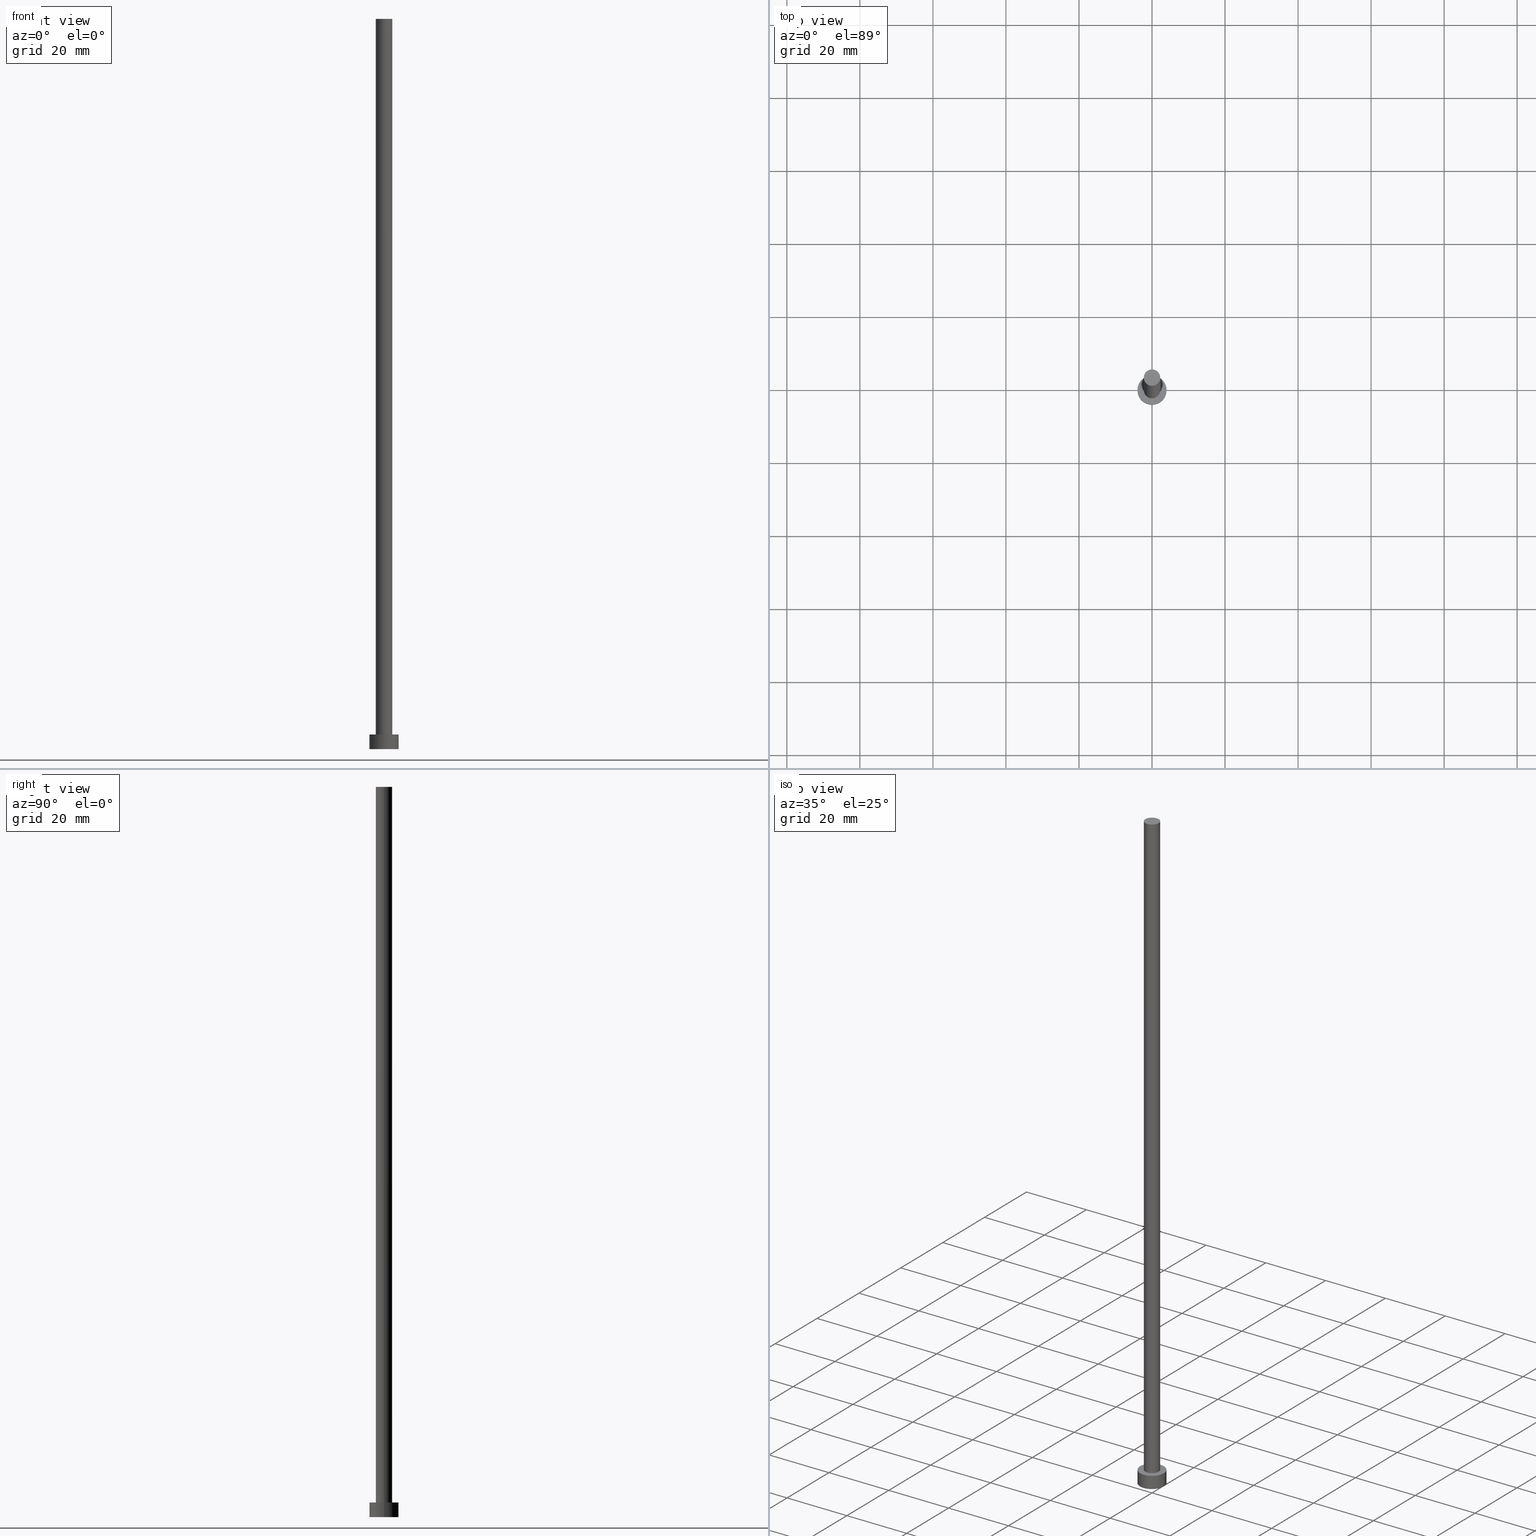
[diagram: canonical four-view strip — front | top / right | iso, engineering-drawing reading convention]
A machine part, canonical four-view strip (front | top / right | iso — engineering-drawing reading convention). The complete STEP part file that produces these views, byte-faithful:
ISO-10303-21;
HEADER;
FILE_DESCRIPTION (( 'STEP AP203' ),
    '1' );
FILE_NAME ('e375.STEP',
    '2023-02-13T16:20:34',
    ( '' ),
    ( '' ),
    'SwSTEP 2.0',
    'SolidWorks 2019',
    '' );
FILE_SCHEMA (( 'CONFIG_CONTROL_DESIGN' ));
ENDSEC;

DATA;
#1 = APPLICATION_CONTEXT ( 'configuration controlled 3d designs of mechanical parts and assemblies' ) ;
#2 = CIRCLE ( 'NONE', #11, 4.000000000000000000 ) ;
#3 = LOCAL_TIME ( 17, 20, 34.00000000000000000, #76 ) ;
#4 = CARTESIAN_POINT ( 'NONE',  ( -4.000000000000000000, 0.000000000000000000, 0.000000000000000000 ) ) ;
#5 = PLANE ( 'NONE',  #177 ) ;
#6 = DIRECTION ( 'NONE',  ( -0.000000000000000000, -0.000000000000000000, -1.000000000000000000 ) ) ;
#7 = DIRECTION ( 'NONE',  ( -1.000000000000000000, 0.000000000000000000, 0.000000000000000000 ) ) ;
#8 = AXIS2_PLACEMENT_3D ( 'NONE', #223, #46, #43 ) ;
#9 = DIRECTION ( 'NONE',  ( 0.000000000000000000, 0.000000000000000000, 1.000000000000000000 ) ) ;
#10 = VERTEX_POINT ( 'NONE', #198 ) ;
#11 = AXIS2_PLACEMENT_3D ( 'NONE', #242, #122, #161 ) ;
#12 = VERTEX_POINT ( 'NONE', #183 ) ;
#13 = APPROVAL_ROLE ( '' ) ;
#14 =( NAMED_UNIT ( * ) PLANE_ANGLE_UNIT ( ) SI_UNIT ( $, .RADIAN. ) );
#15 = EDGE_CURVE ( 'NONE', #68, #233, #2, .T. ) ;
#16 = CIRCLE ( 'NONE', #185, 4.000000000000000000 ) ;
#17 = VECTOR ( 'NONE', #142, 1000.000000000000000 ) ;
#18 = APPROVAL_PERSON_ORGANIZATION ( #72, #224, #225 ) ;
#19 = CARTESIAN_POINT ( 'NONE',  ( 0.000000000000000000, 0.000000000000000000, 4.000000000000000000 ) ) ;
#20 = CARTESIAN_POINT ( 'NONE',  ( 0.000000000000000000, 0.000000000000000000, 4.000000000000000000 ) ) ;
#21 = DIRECTION ( 'NONE',  ( 1.000000000000000000, 0.000000000000000000, 0.000000000000000000 ) ) ;
#22 = MANIFOLD_SOLID_BREP ( 'P�idat vysunut�m3', #210 ) ;
#23 = VERTEX_POINT ( 'NONE', #162 ) ;
#24 = EDGE_CURVE ( 'NONE', #68, #165, #243, .T. ) ;
#25 = DIRECTION ( 'NONE',  ( 0.000000000000000000, 0.000000000000000000, 1.000000000000000000 ) ) ;
#26 = CYLINDRICAL_SURFACE ( 'NONE', #184, 4.000000000000000000 ) ;
#27 = CIRCLE ( 'NONE', #49, 2.250000000000000000 ) ;
#28 = FACE_BOUND ( 'NONE', #248, .T. ) ;
#29 =( LENGTH_UNIT ( ) NAMED_UNIT ( * ) SI_UNIT ( .MILLI., .METRE. ) );
#30 = AXIS2_PLACEMENT_3D ( 'NONE', #20, #136, #137 ) ;
#31 = PERSON_AND_ORGANIZATION ( #236, #35 ) ;
#32 = ORIENTED_EDGE ( 'NONE', *, *, #15, .F. ) ;
#33 = PRODUCT_DEFINITION ( 'NEZN�M�', '', #124, #121 ) ;
#34 = ORIENTED_EDGE ( 'NONE', *, *, #93, .F. ) ;
#35 = ORGANIZATION ( 'NEUR�EN�', 'NEUR�EN�', '' ) ;
#36 = DIRECTION ( 'NONE',  ( 0.000000000000000000, 0.000000000000000000, 1.000000000000000000 ) ) ;
#37 = DIRECTION ( 'NONE',  ( 1.000000000000000000, 0.000000000000000000, 0.000000000000000000 ) ) ;
#38 = CARTESIAN_POINT ( 'NONE',  ( -2.250000000000000000, 0.000000000000000000, 200.0000000000000000 ) ) ;
#39 = FACE_OUTER_BOUND ( 'NONE', #138, .T. ) ;
#40 = ORIENTED_EDGE ( 'NONE', *, *, #230, .F. ) ;
#41 = CC_DESIGN_DATE_AND_TIME_ASSIGNMENT ( #75, #126, ( #33 ) ) ;
#42 = CARTESIAN_POINT ( 'NONE',  ( 4.000000000000000000, 4.898587196589412829E-16, 4.000000000000000000 ) ) ;
#43 = DIRECTION ( 'NONE',  ( 1.000000000000000000, 0.000000000000000000, -0.000000000000000000 ) ) ;
#44 = EDGE_LOOP ( 'NONE', ( #98, #108 ) ) ;
#45 = APPROVAL_PERSON_ORGANIZATION ( #31, #130, #13 ) ;
#46 = DIRECTION ( 'NONE',  ( 0.000000000000000000, 0.000000000000000000, 1.000000000000000000 ) ) ;
#47 = ADVANCED_FACE ( 'NONE', ( #28, #218 ), #64, .T. ) ;
#48 = COORDINATED_UNIVERSAL_TIME_OFFSET ( 1, 0, .AHEAD. ) ;
#49 = AXIS2_PLACEMENT_3D ( 'NONE', #194, #155, #251 ) ;
#50 = COORDINATED_UNIVERSAL_TIME_OFFSET ( 1, 0, .AHEAD. ) ;
#51 = ORIENTED_EDGE ( 'NONE', *, *, #110, .F. ) ;
#52 = APPROVAL_ROLE ( '' ) ;
#53 = CYLINDRICAL_SURFACE ( 'NONE', #247, 2.250000000000000000 ) ;
#54 = PERSON_AND_ORGANIZATION ( #236, #35 ) ;
#55 =( GEOMETRIC_REPRESENTATION_CONTEXT ( 3 ) GLOBAL_UNCERTAINTY_ASSIGNED_CONTEXT ( ( #221 ) ) GLOBAL_UNIT_ASSIGNED_CONTEXT ( ( #29, #14, #246 ) ) REPRESENTATION_CONTEXT ( 'NONE', 'WORKASPACE' ) );
#56 = CALENDAR_DATE ( 2023, 13, 2 ) ;
#57 = DIRECTION ( 'NONE',  ( 0.000000000000000000, 0.000000000000000000, 1.000000000000000000 ) ) ;
#58 = DIRECTION ( 'NONE',  ( -1.000000000000000000, 0.000000000000000000, 0.000000000000000000 ) ) ;
#59 = ORIENTED_EDGE ( 'NONE', *, *, #15, .T. ) ;
#60 = CARTESIAN_POINT ( 'NONE',  ( 0.000000000000000000, 0.000000000000000000, 200.0000000000000000 ) ) ;
#61 = EDGE_CURVE ( 'NONE', #233, #10, #180, .T. ) ;
#62 = ORIENTED_EDGE ( 'NONE', *, *, #91, .F. ) ;
#63 = AXIS2_PLACEMENT_3D ( 'NONE', #92, #113, #166 ) ;
#64 = PLANE ( 'NONE',  #109 ) ;
#65 = CARTESIAN_POINT ( 'NONE',  ( 4.000000000000000000, 4.898587196589412829E-16, 4.000000000000000000 ) ) ;
#66 = CIRCLE ( 'NONE', #30, 2.250000000000000000 ) ;
#67 = APPLICATION_PROTOCOL_DEFINITION ( 'international standard', 'config_control_design', 1994, #229 ) ;
#68 = VERTEX_POINT ( 'NONE', #220 ) ;
#69 = VECTOR ( 'NONE', #118, 1000.000000000000000 ) ;
#70 = DATE_AND_TIME ( #128, #226 ) ;
#71 = VERTEX_POINT ( 'NONE', #83 ) ;
#72 = PERSON_AND_ORGANIZATION ( #236, #35 ) ;
#73 = CC_DESIGN_PERSON_AND_ORGANIZATION_ASSIGNMENT ( #255, #157, ( #85 ) ) ;
#74 = EDGE_LOOP ( 'NONE', ( #249, #239 ) ) ;
#75 = DATE_AND_TIME ( #112, #139 ) ;
#76 = COORDINATED_UNIVERSAL_TIME_OFFSET ( 1, 0, .AHEAD. ) ;
#77 = CARTESIAN_POINT ( 'NONE',  ( 0.000000000000000000, 0.000000000000000000, 0.000000000000000000 ) ) ;
#78 = CC_DESIGN_PERSON_AND_ORGANIZATION_ASSIGNMENT ( #208, #158, ( #124 ) ) ;
#79 = DIRECTION ( 'NONE',  ( -0.000000000000000000, -0.000000000000000000, -1.000000000000000000 ) ) ;
#80 = FACE_OUTER_BOUND ( 'NONE', #74, .T. ) ;
#81 = DATE_TIME_ROLE ( 'classification_date' ) ;
#82 = ADVANCED_FACE ( 'NONE', ( #159 ), #26, .T. ) ;
#83 = CARTESIAN_POINT ( 'NONE',  ( -2.250000000000000000, 0.000000000000000000, 200.0000000000000000 ) ) ;
#84 = FACE_OUTER_BOUND ( 'NONE', #189, .T. ) ;
#85 = SECURITY_CLASSIFICATION ( '', '', #175 ) ;
#86 = ADVANCED_BREP_SHAPE_REPRESENTATION ( 'e375', ( #22, #63 ), #55 ) ;
#87 = ORIENTED_EDGE ( 'NONE', *, *, #91, .T. ) ;
#88 = ADVANCED_FACE ( 'NONE', ( #84 ), #211, .T. ) ;
#89 = DIRECTION ( 'NONE',  ( 1.000000000000000000, 0.000000000000000000, -0.000000000000000000 ) ) ;
#90 = PLANE ( 'NONE',  #8 ) ;
#91 = EDGE_CURVE ( 'NONE', #71, #12, #235, .T. ) ;
#92 = CARTESIAN_POINT ( 'NONE',  ( 0.000000000000000000, 0.000000000000000000, 0.000000000000000000 ) ) ;
#93 = EDGE_CURVE ( 'NONE', #12, #23, #66, .T. ) ;
#94 = MECHANICAL_CONTEXT ( 'NONE', #229, 'mechanical' ) ;
#95 = PERSON_AND_ORGANIZATION_ROLE ( 'design_owner' ) ;
#96 = CC_DESIGN_PERSON_AND_ORGANIZATION_ASSIGNMENT ( #238, #173, ( #124 ) ) ;
#97 = AXIS2_PLACEMENT_3D ( 'NONE', #19, #195, #176 ) ;
#98 = ORIENTED_EDGE ( 'NONE', *, *, #181, .F. ) ;
#99 = CARTESIAN_POINT ( 'NONE',  ( 0.000000000000000000, 0.000000000000000000, 200.0000000000000000 ) ) ;
#100 = DIRECTION ( 'NONE',  ( 0.000000000000000000, 0.000000000000000000, 1.000000000000000000 ) ) ;
#101 = VECTOR ( 'NONE', #6, 1000.000000000000000 ) ;
#102 = AXIS2_PLACEMENT_3D ( 'NONE', #141, #219, #163 ) ;
#103 = DATE_AND_TIME ( #56, #3 ) ;
#104 = DIRECTION ( 'NONE',  ( -0.000000000000000000, -0.000000000000000000, -1.000000000000000000 ) ) ;
#105 = DIRECTION ( 'NONE',  ( 1.000000000000000000, 0.000000000000000000, -0.000000000000000000 ) ) ;
#106 = DIRECTION ( 'NONE',  ( -0.000000000000000000, -0.000000000000000000, -1.000000000000000000 ) ) ;
#107 = CARTESIAN_POINT ( 'NONE',  ( 0.000000000000000000, 0.000000000000000000, 4.000000000000000000 ) ) ;
#108 = ORIENTED_EDGE ( 'NONE', *, *, #186, .F. ) ;
#109 = AXIS2_PLACEMENT_3D ( 'NONE', #240, #197, #105 ) ;
#110 = EDGE_CURVE ( 'NONE', #233, #68, #172, .T. ) ;
#111 = ORIENTED_EDGE ( 'NONE', *, *, #61, .F. ) ;
#112 = CALENDAR_DATE ( 2023, 13, 2 ) ;
#113 = DIRECTION ( 'NONE',  ( 0.000000000000000000, 0.000000000000000000, 1.000000000000000000 ) ) ;
#114 = AXIS2_PLACEMENT_3D ( 'NONE', #77, #100, #152 ) ;
#115 = CC_DESIGN_SECURITY_CLASSIFICATION ( #85, ( #124 ) ) ;
#116 = ORIENTED_EDGE ( 'NONE', *, *, #134, .T. ) ;
#117 = ADVANCED_FACE ( 'NONE', ( #217 ), #53, .T. ) ;
#118 = DIRECTION ( 'NONE',  ( -0.000000000000000000, -0.000000000000000000, -1.000000000000000000 ) ) ;
#119 = ORIENTED_EDGE ( 'NONE', *, *, #61, .T. ) ;
#120 = EDGE_LOOP ( 'NONE', ( #51, #119, #231, #151 ) ) ;
#121 = DESIGN_CONTEXT ( 'detailed design', #1, 'design' ) ;
#122 = DIRECTION ( 'NONE',  ( 0.000000000000000000, 0.000000000000000000, 1.000000000000000000 ) ) ;
#123 = APPROVAL_PERSON_ORGANIZATION ( #54, #205, #52 ) ;
#124 = PRODUCT_DEFINITION_FORMATION_WITH_SPECIFIED_SOURCE ( 'LIBOVOLN�', '', #127, .NOT_KNOWN. ) ;
#125 = CC_DESIGN_APPROVAL ( #224, ( #33 ) ) ;
#126 = DATE_TIME_ROLE ( 'creation_date' ) ;
#127 = PRODUCT ( 'e375', 'e375', '', ( #94 ) ) ;
#128 = CALENDAR_DATE ( 2023, 13, 2 ) ;
#129 = ORIENTED_EDGE ( 'NONE', *, *, #110, .T. ) ;
#130 = APPROVAL ( #187, 'NEUR�EN�' ) ;
#131 = SHAPE_DEFINITION_REPRESENTATION ( #170, #86 ) ;
#132 = CALENDAR_DATE ( 2023, 13, 2 ) ;
#133 = COORDINATED_UNIVERSAL_TIME_OFFSET ( 1, 0, .AHEAD. ) ;
#134 = EDGE_CURVE ( 'NONE', #143, #23, #174, .T. ) ;
#135 = DIRECTION ( 'NONE',  ( 1.000000000000000000, 0.000000000000000000, 0.000000000000000000 ) ) ;
#136 = DIRECTION ( 'NONE',  ( 0.000000000000000000, 0.000000000000000000, 1.000000000000000000 ) ) ;
#137 = DIRECTION ( 'NONE',  ( 1.000000000000000000, 0.000000000000000000, 0.000000000000000000 ) ) ;
#138 = EDGE_LOOP ( 'NONE', ( #111, #32, #168, #207 ) ) ;
#139 = LOCAL_TIME ( 17, 20, 34.00000000000000000, #48 ) ;
#140 = ADVANCED_FACE ( 'NONE', ( #39 ), #237, .T. ) ;
#141 = CARTESIAN_POINT ( 'NONE',  ( 0.000000000000000000, 0.000000000000000000, 200.0000000000000000 ) ) ;
#142 = DIRECTION ( 'NONE',  ( -0.000000000000000000, -0.000000000000000000, -1.000000000000000000 ) ) ;
#143 = VERTEX_POINT ( 'NONE', #214 ) ;
#144 = AXIS2_PLACEMENT_3D ( 'NONE', #196, #25, #21 ) ;
#145 = PERSON_AND_ORGANIZATION ( #236, #35 ) ;
#146 = APPLICATION_PROTOCOL_DEFINITION ( 'international standard', 'config_control_design', 1994, #1 ) ;
#147 = CALENDAR_DATE ( 2023, 13, 2 ) ;
#148 = COORDINATED_UNIVERSAL_TIME_OFFSET ( 1, 0, .AHEAD. ) ;
#149 = CIRCLE ( 'NONE', #144, 2.250000000000000000 ) ;
#150 = EDGE_CURVE ( 'NONE', #23, #12, #27, .T. ) ;
#151 = ORIENTED_EDGE ( 'NONE', *, *, #24, .F. ) ;
#152 = DIRECTION ( 'NONE',  ( 1.000000000000000000, 0.000000000000000000, 0.000000000000000000 ) ) ;
#153 = ORIENTED_EDGE ( 'NONE', *, *, #134, .F. ) ;
#154 = CARTESIAN_POINT ( 'NONE',  ( 2.250000000000000000, 2.755455298081544285E-16, 200.0000000000000000 ) ) ;
#155 = DIRECTION ( 'NONE',  ( 0.000000000000000000, 0.000000000000000000, 1.000000000000000000 ) ) ;
#156 = CIRCLE ( 'NONE', #102, 2.250000000000000000 ) ;
#157 = PERSON_AND_ORGANIZATION_ROLE ( 'classification_officer' ) ;
#158 = PERSON_AND_ORGANIZATION_ROLE ( 'creator' ) ;
#159 = FACE_OUTER_BOUND ( 'NONE', #120, .T. ) ;
#160 = LOCAL_TIME ( 17, 20, 34.00000000000000000, #148 ) ;
#161 = DIRECTION ( 'NONE',  ( 1.000000000000000000, 0.000000000000000000, 0.000000000000000000 ) ) ;
#162 = CARTESIAN_POINT ( 'NONE',  ( 2.250000000000000000, 2.755455298081544285E-16, 4.000000000000000000 ) ) ;
#163 = DIRECTION ( 'NONE',  ( 1.000000000000000000, 0.000000000000000000, 0.000000000000000000 ) ) ;
#164 = EDGE_CURVE ( 'NONE', #143, #71, #149, .T. ) ;
#165 = VERTEX_POINT ( 'NONE', #4 ) ;
#166 = DIRECTION ( 'NONE',  ( 1.000000000000000000, 0.000000000000000000, 0.000000000000000000 ) ) ;
#167 = CC_DESIGN_DATE_AND_TIME_ASSIGNMENT ( #103, #81, ( #85 ) ) ;
#168 = ORIENTED_EDGE ( 'NONE', *, *, #24, .T. ) ;
#169 = PERSON_AND_ORGANIZATION_ROLE ( 'creator' ) ;
#170 = PRODUCT_DEFINITION_SHAPE ( 'NONE', 'NONE',  #33 ) ;
#171 = DATE_AND_TIME ( #132, #200 ) ;
#172 = CIRCLE ( 'NONE', #202, 4.000000000000000000 ) ;
#173 = PERSON_AND_ORGANIZATION_ROLE ( 'design_supplier' ) ;
#174 = LINE ( 'NONE', #154, #69 ) ;
#175 = SECURITY_CLASSIFICATION_LEVEL ( 'unclassified' ) ;
#176 = DIRECTION ( 'NONE',  ( -1.000000000000000000, 0.000000000000000000, 0.000000000000000000 ) ) ;
#177 = AXIS2_PLACEMENT_3D ( 'NONE', #99, #9, #89 ) ;
#178 = ORIENTED_EDGE ( 'NONE', *, *, #150, .F. ) ;
#179 = DIRECTION ( 'NONE',  ( -1.000000000000000000, 0.000000000000000000, 0.000000000000000000 ) ) ;
#180 = LINE ( 'NONE', #65, #101 ) ;
#181 = EDGE_CURVE ( 'NONE', #165, #10, #241, .T. ) ;
#182 = DIRECTION ( 'NONE',  ( -0.000000000000000000, -0.000000000000000000, -1.000000000000000000 ) ) ;
#183 = CARTESIAN_POINT ( 'NONE',  ( -2.250000000000000000, 0.000000000000000000, 4.000000000000000000 ) ) ;
#184 = AXIS2_PLACEMENT_3D ( 'NONE', #107, #182, #7 ) ;
#185 = AXIS2_PLACEMENT_3D ( 'NONE', #209, #57, #37 ) ;
#186 = EDGE_CURVE ( 'NONE', #10, #165, #16, .T. ) ;
#187 = APPROVAL_STATUS ( 'not_yet_approved' ) ;
#188 = APPROVAL_STATUS ( 'not_yet_approved' ) ;
#189 = EDGE_LOOP ( 'NONE', ( #153, #40, #87, #254 ) ) ;
#190 = APPROVAL_DATE_TIME ( #232, #130 ) ;
#191 = CC_DESIGN_APPROVAL ( #130, ( #124 ) ) ;
#192 = PRODUCT_RELATED_PRODUCT_CATEGORY ( 'detail', '', ( #127 ) ) ;
#193 = CARTESIAN_POINT ( 'NONE',  ( 0.000000000000000000, 0.000000000000000000, 200.0000000000000000 ) ) ;
#194 = CARTESIAN_POINT ( 'NONE',  ( 0.000000000000000000, 0.000000000000000000, 4.000000000000000000 ) ) ;
#195 = DIRECTION ( 'NONE',  ( -0.000000000000000000, -0.000000000000000000, -1.000000000000000000 ) ) ;
#196 = CARTESIAN_POINT ( 'NONE',  ( 0.000000000000000000, 0.000000000000000000, 200.0000000000000000 ) ) ;
#197 = DIRECTION ( 'NONE',  ( 0.000000000000000000, 0.000000000000000000, 1.000000000000000000 ) ) ;
#198 = CARTESIAN_POINT ( 'NONE',  ( 4.000000000000000000, 4.898587196589412829E-16, 0.000000000000000000 ) ) ;
#199 = CC_DESIGN_PERSON_AND_ORGANIZATION_ASSIGNMENT ( #250, #169, ( #33 ) ) ;
#200 = LOCAL_TIME ( 17, 20, 34.00000000000000000, #133 ) ;
#201 = CARTESIAN_POINT ( 'NONE',  ( -4.000000000000000000, 0.000000000000000000, 4.000000000000000000 ) ) ;
#202 = AXIS2_PLACEMENT_3D ( 'NONE', #253, #36, #135 ) ;
#203 = EDGE_LOOP ( 'NONE', ( #216, #116, #222, #62 ) ) ;
#204 = APPROVAL_DATE_TIME ( #70, #224 ) ;
#205 = APPROVAL ( #188, 'NEUR�EN�' ) ;
#206 = CC_DESIGN_APPROVAL ( #205, ( #85 ) ) ;
#207 = ORIENTED_EDGE ( 'NONE', *, *, #181, .T. ) ;
#208 = PERSON_AND_ORGANIZATION ( #236, #35 ) ;
#209 = CARTESIAN_POINT ( 'NONE',  ( 0.000000000000000000, 0.000000000000000000, 0.000000000000000000 ) ) ;
#210 = CLOSED_SHELL ( 'NONE', ( #117, #82, #140, #47, #234, #88, #215 ) ) ;
#211 = CYLINDRICAL_SURFACE ( 'NONE', #245, 2.250000000000000000 ) ;
#212 = EDGE_LOOP ( 'NONE', ( #59, #129 ) ) ;
#213 = APPROVAL_DATE_TIME ( #171, #205 ) ;
#214 = CARTESIAN_POINT ( 'NONE',  ( 2.250000000000000000, 2.755455298081544285E-16, 200.0000000000000000 ) ) ;
#215 = ADVANCED_FACE ( 'NONE', ( #80 ), #5, .T. ) ;
#216 = ORIENTED_EDGE ( 'NONE', *, *, #164, .F. ) ;
#217 = FACE_OUTER_BOUND ( 'NONE', #203, .T. ) ;
#218 = FACE_OUTER_BOUND ( 'NONE', #212, .T. ) ;
#219 = DIRECTION ( 'NONE',  ( 0.000000000000000000, 0.000000000000000000, 1.000000000000000000 ) ) ;
#220 = CARTESIAN_POINT ( 'NONE',  ( -4.000000000000000000, 0.000000000000000000, 4.000000000000000000 ) ) ;
#221 = UNCERTAINTY_MEASURE_WITH_UNIT (LENGTH_MEASURE( 1.000000000000000082E-05 ), #29, 'distance_accuracy_value', 'NONE');
#222 = ORIENTED_EDGE ( 'NONE', *, *, #150, .T. ) ;
#223 = CARTESIAN_POINT ( 'NONE',  ( 0.000000000000000000, 0.000000000000000000, 0.000000000000000000 ) ) ;
#224 = APPROVAL ( #228, 'NEUR�EN�' ) ;
#225 = APPROVAL_ROLE ( '' ) ;
#226 = LOCAL_TIME ( 17, 20, 34.00000000000000000, #50 ) ;
#227 = VECTOR ( 'NONE', #79, 1000.000000000000000 ) ;
#228 = APPROVAL_STATUS ( 'not_yet_approved' ) ;
#229 = APPLICATION_CONTEXT ( 'configuration controlled 3d designs of mechanical parts and assemblies' ) ;
#230 = EDGE_CURVE ( 'NONE', #71, #143, #156, .T. ) ;
#231 = ORIENTED_EDGE ( 'NONE', *, *, #186, .T. ) ;
#232 = DATE_AND_TIME ( #147, #160 ) ;
#233 = VERTEX_POINT ( 'NONE', #42 ) ;
#234 = ADVANCED_FACE ( 'NONE', ( #244 ), #90, .F. ) ;
#235 = LINE ( 'NONE', #38, #227 ) ;
#236 = PERSON ( 'NEUR�EN�', 'NEUR�EN�', 'NEUR�EN�', ('NEUR�EN�'), ('NEUR�EN�'), ('NEUR�EN�') ) ;
#237 = CYLINDRICAL_SURFACE ( 'NONE', #97, 4.000000000000000000 ) ;
#238 = PERSON_AND_ORGANIZATION ( #236, #35 ) ;
#239 = ORIENTED_EDGE ( 'NONE', *, *, #164, .T. ) ;
#240 = CARTESIAN_POINT ( 'NONE',  ( 0.000000000000000000, 0.000000000000000000, 4.000000000000000000 ) ) ;
#241 = CIRCLE ( 'NONE', #114, 4.000000000000000000 ) ;
#242 = CARTESIAN_POINT ( 'NONE',  ( 0.000000000000000000, 0.000000000000000000, 4.000000000000000000 ) ) ;
#243 = LINE ( 'NONE', #201, #17 ) ;
#244 = FACE_OUTER_BOUND ( 'NONE', #44, .T. ) ;
#245 = AXIS2_PLACEMENT_3D ( 'NONE', #60, #104, #58 ) ;
#246 =( NAMED_UNIT ( * ) SI_UNIT ( $, .STERADIAN. ) SOLID_ANGLE_UNIT ( ) );
#247 = AXIS2_PLACEMENT_3D ( 'NONE', #193, #106, #179 ) ;
#248 = EDGE_LOOP ( 'NONE', ( #34, #178 ) ) ;
#249 = ORIENTED_EDGE ( 'NONE', *, *, #230, .T. ) ;
#250 = PERSON_AND_ORGANIZATION ( #236, #35 ) ;
#251 = DIRECTION ( 'NONE',  ( 1.000000000000000000, 0.000000000000000000, 0.000000000000000000 ) ) ;
#252 = CC_DESIGN_PERSON_AND_ORGANIZATION_ASSIGNMENT ( #145, #95, ( #127 ) ) ;
#253 = CARTESIAN_POINT ( 'NONE',  ( 0.000000000000000000, 0.000000000000000000, 4.000000000000000000 ) ) ;
#254 = ORIENTED_EDGE ( 'NONE', *, *, #93, .T. ) ;
#255 = PERSON_AND_ORGANIZATION ( #236, #35 ) ;
ENDSEC;
END-ISO-10303-21;
